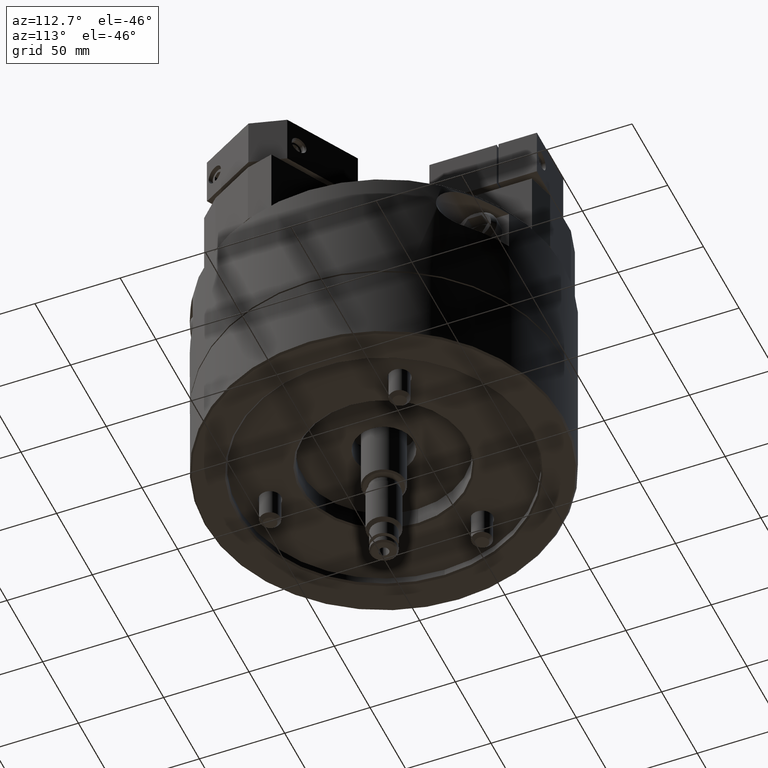
[diagram: clean part render]
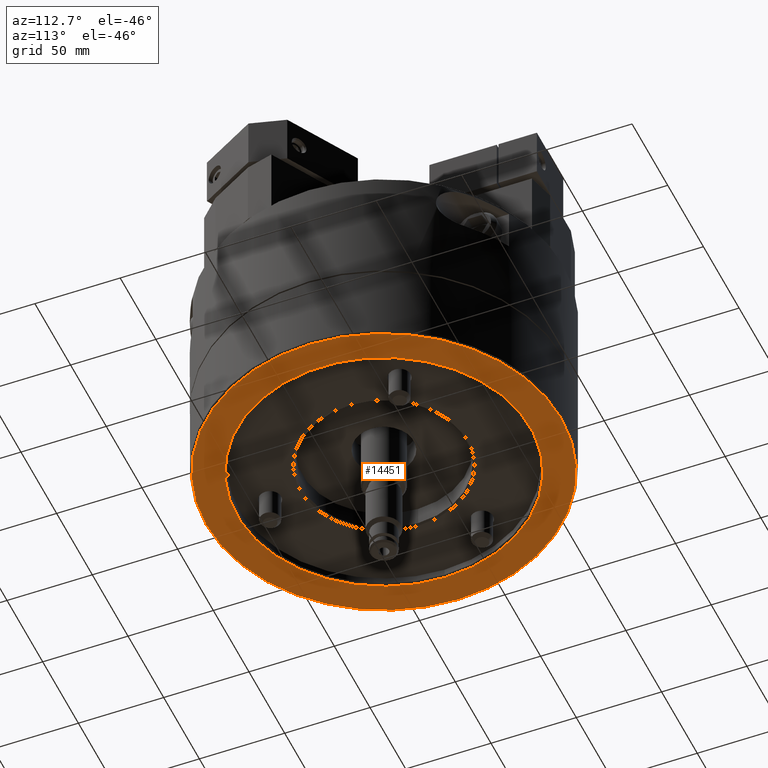
[diagram: same view with one face highlighted and labeled with its STEP entity id]
A machine part, auxiliary view. The second image highlights one B-rep face of the part: STEP entity #14451.
In plain terms, the highlighted planar face has unit normal (0, 0, -1).
Its self-contained STEP definition (entity closure, byte-faithful):
#1884=PLANE('',#16225);
#2752=CIRCLE('',#16206,104.);
#2757=CIRCLE('',#16213,86.);
#4163=ORIENTED_EDGE('',*,*,#7342,.T.);
#4164=ORIENTED_EDGE('',*,*,#7347,.T.);
#7342=EDGE_CURVE('',#9071,#9071,#2752,.T.);
#7347=EDGE_CURVE('',#9076,#9076,#2757,.T.);
#9071=VERTEX_POINT('',#23526);
#9076=VERTEX_POINT('',#23538);
#10736=EDGE_LOOP('',(#4163));
#10737=EDGE_LOOP('',(#4164));
#12532=FACE_BOUND('',#10736,.T.);
#12533=FACE_BOUND('',#10737,.T.);
#14451=ADVANCED_FACE('',(#12532,#12533),#1884,.T.);
#16206=AXIS2_PLACEMENT_3D('',#23525,#18795,#18796);
#16213=AXIS2_PLACEMENT_3D('',#23537,#18809,#18810);
#16225=AXIS2_PLACEMENT_3D('',#23553,#18833,#18834);
#18795=DIRECTION('',(0.,0.,-1.));
#18796=DIRECTION('',(-1.,0.,0.));
#18809=DIRECTION('',(0.,0.,1.));
#18810=DIRECTION('',(-1.,0.,0.));
#18833=DIRECTION('',(0.,0.,-1.));
#18834=DIRECTION('',(-1.,0.,0.));
#23525=CARTESIAN_POINT('',(0.,0.,-47.));
#23526=CARTESIAN_POINT('',(-104.,0.,-47.));
#23537=CARTESIAN_POINT('',(0.,0.,-47.));
#23538=CARTESIAN_POINT('',(-86.,0.,-47.));
#23553=CARTESIAN_POINT('',(0.,85.,-47.));